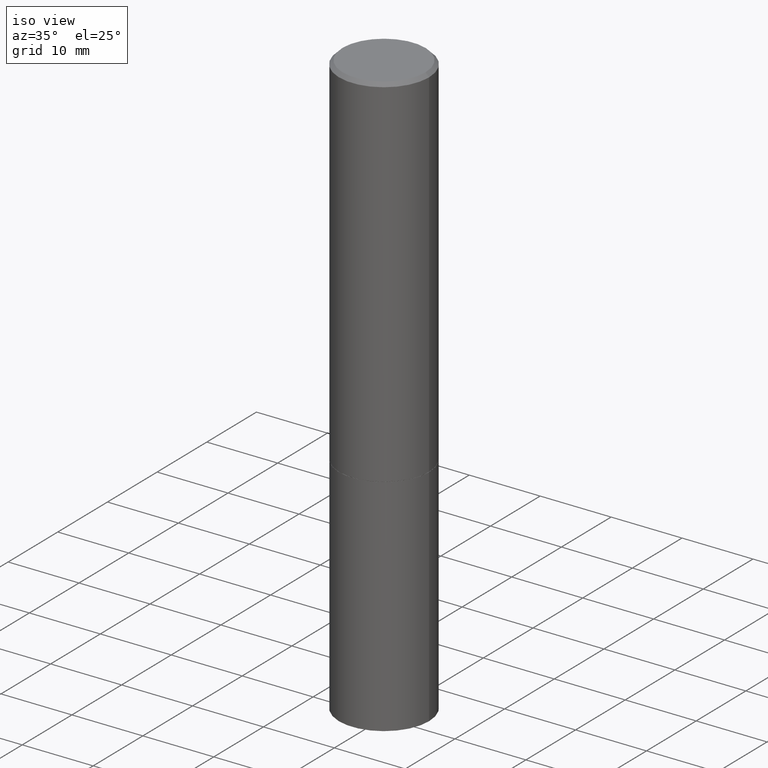
[diagram: clean part render]
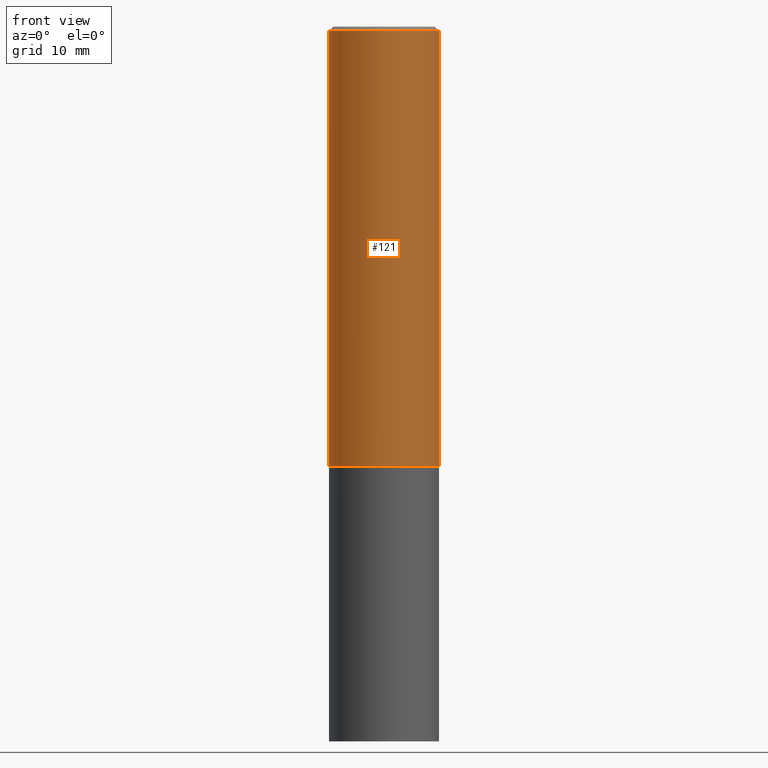
[diagram: tour spotlight — one face highlighted and labeled with its STEP entity id]
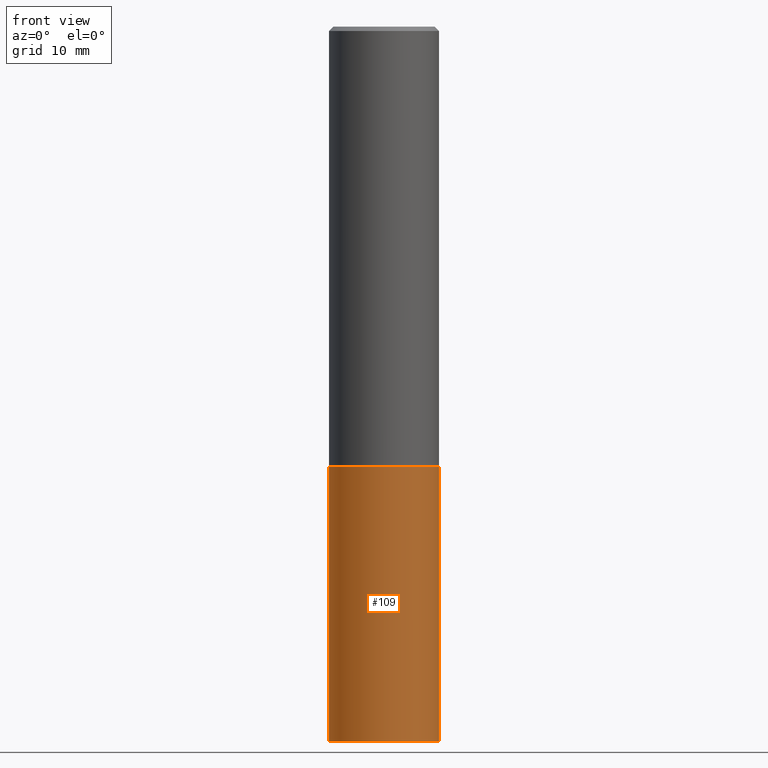
[diagram: tour spotlight — one face highlighted and labeled with its STEP entity id]
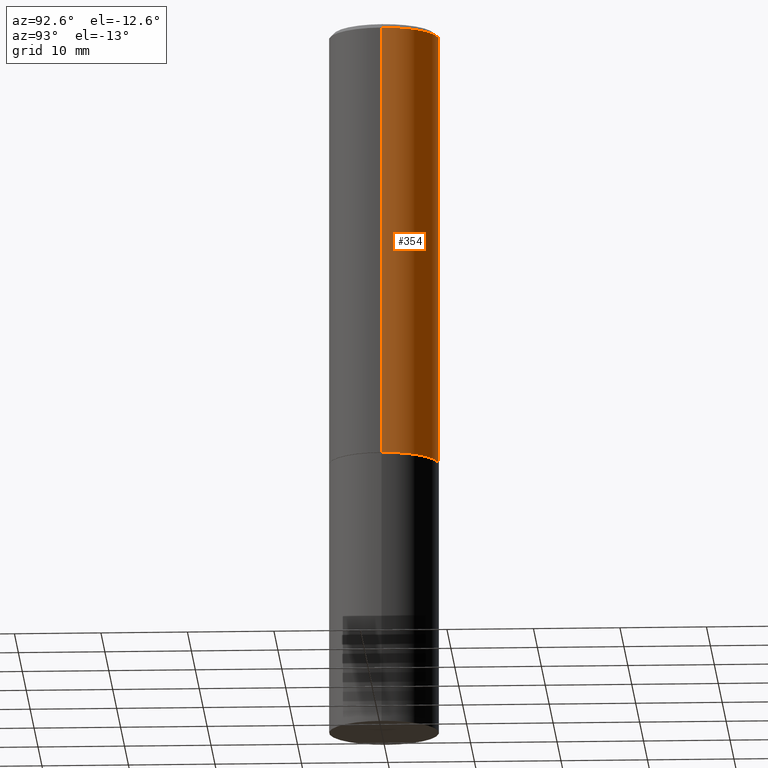
[diagram: tour spotlight — one face highlighted and labeled with its STEP entity id]
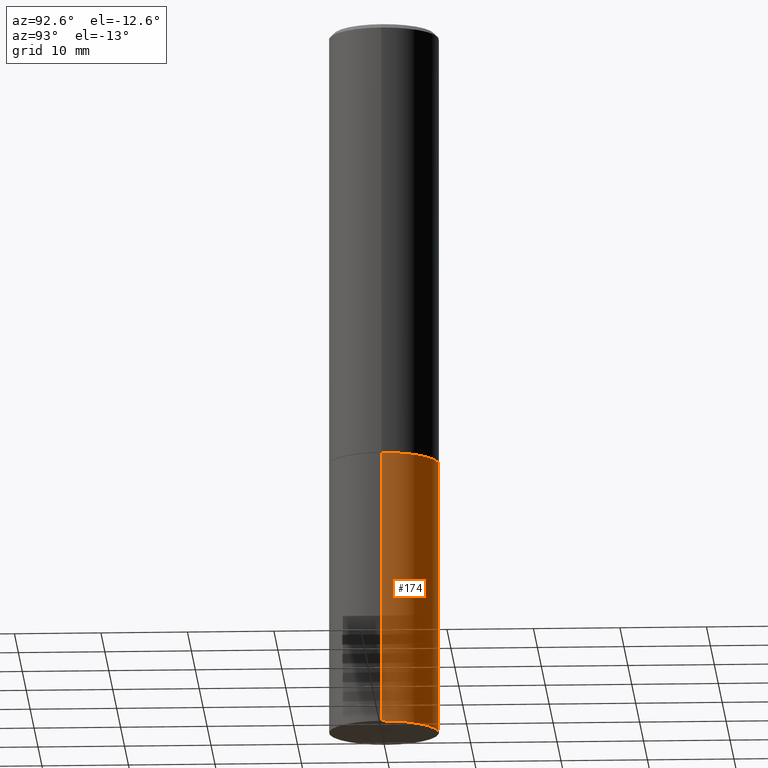
[diagram: tour spotlight — one face highlighted and labeled with its STEP entity id]
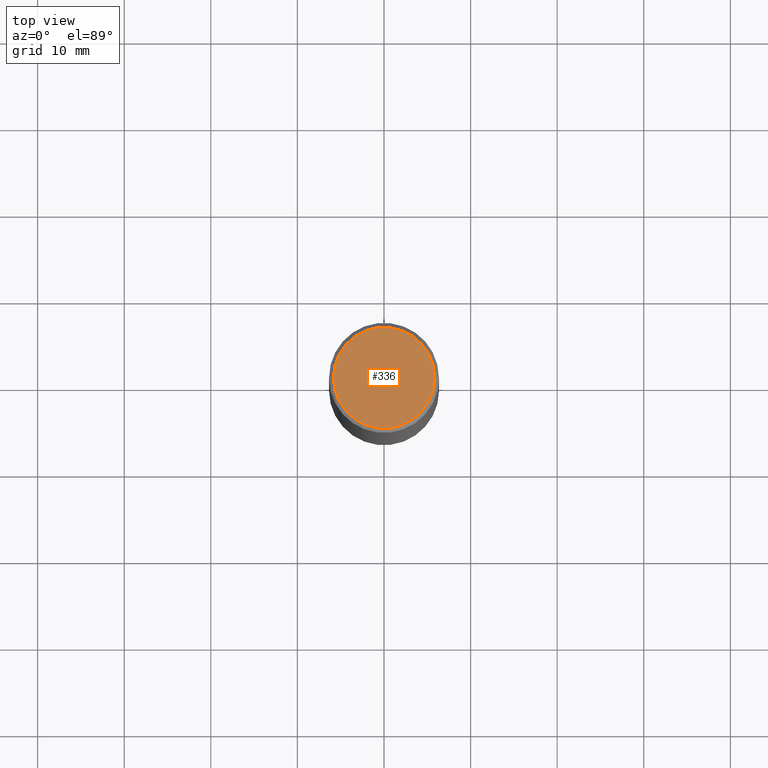
[diagram: tour spotlight — one face highlighted and labeled with its STEP entity id]
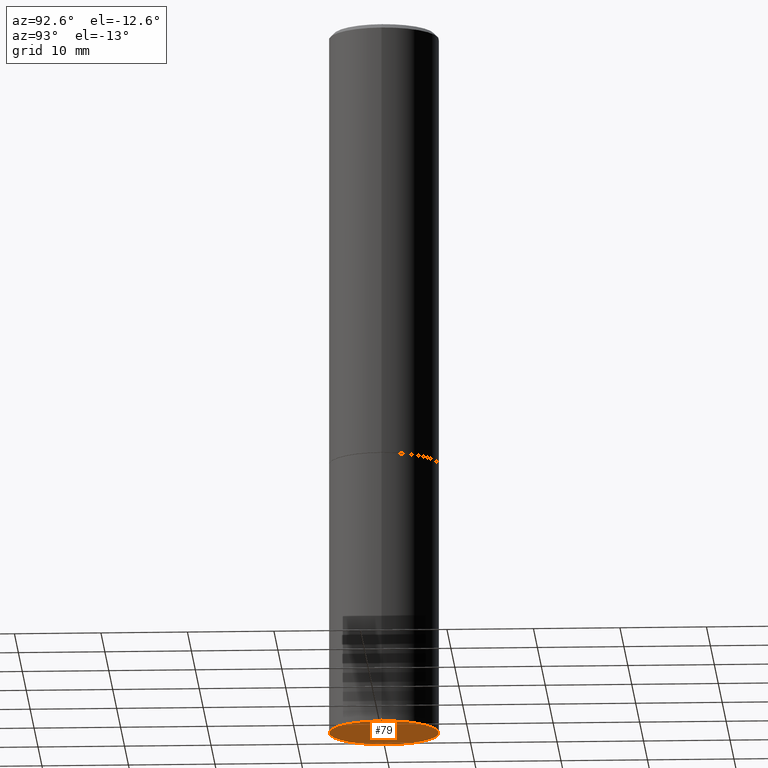
[diagram: tour spotlight — one face highlighted and labeled with its STEP entity id]
A machine part: a face-by-face anatomy tour. The part has 12 B-rep faces; the first image is the clean iso view, then the 6 largest visible faces are spotlighted one at a time (largest first), each with its STEP entity span.

Face 1 — front view, entity #121. In plain terms, the highlighted cylindrical surface (partial cylindrical patch) has radius 6.35 mm, axis along (-0, 0, 1).
Definition (entity closure, byte-faithful):
#11 = DIRECTION ( 'NONE',  ( 1.000000000000000000, -6.982962677686267499E-15, 0.000000000000000000 ) ) ;
#26 = CARTESIAN_POINT ( 'NONE',  ( 0.2500000000000000000, -8.725211865769014047E-15, -1.998999999999999888 ) ) ;
#31 = CARTESIAN_POINT ( 'NONE',  ( 0.2499999999999998612, -1.745740669421565692E-15, 1.219044193948983248E-29 ) ) ;
#33 = AXIS2_PLACEMENT_3D ( 'NONE', #222, #340, #172 ) ;
#77 = DIRECTION ( 'NONE',  ( -2.445468806185136597E-29, 3.491481338843145583E-15, 1.000000000000000000 ) ) ;
#85 = LINE ( 'NONE', #246, #91 ) ;
#91 = VECTOR ( 'NONE', #301, 39.37007874015748143 ) ;
#92 = DIRECTION ( 'NONE',  ( -2.445468806185136877E-29, 3.491481338843145188E-15, 1.000000000000000000 ) ) ;
#98 = CARTESIAN_POINT ( 'NONE',  ( 4.890937612370288047E-31, -6.982962677686311331E-17, -0.02000000000000005940 ) ) ;
#105 = CARTESIAN_POINT ( 'NONE',  ( -0.2499999999999999722, -1.748293572161904475E-15, -1.998999999999999888 ) ) ;
#107 = CARTESIAN_POINT ( 'NONE',  ( 4.888492143564087591E-29, -6.979471196347447369E-15, -1.998999999999999888 ) ) ;
#111 = CIRCLE ( 'NONE', #179, 0.2500000000000000000 ) ;
#121 = ADVANCED_FACE ( 'NONE', ( #148 ), #261, .T. ) ;
#123 = ORIENTED_EDGE ( 'NONE', *, *, #187, .T. ) ;
#129 = EDGE_CURVE ( 'NONE', #193, #334, #325, .T. ) ;
#146 = DIRECTION ( 'NONE',  ( -2.445468806185136597E-29, 3.491481338843145583E-15, 1.000000000000000000 ) ) ;
#148 = FACE_OUTER_BOUND ( 'NONE', #201, .T. ) ;
#162 = AXIS2_PLACEMENT_3D ( 'NONE', #98, #146, #11 ) ;
#172 = DIRECTION ( 'NONE',  ( 1.000000000000000000, -6.982962677686266711E-15, 4.876176775795935793E-29 ) ) ;
#175 = DIRECTION ( 'NONE',  ( 1.000000000000000000, -6.982962677686266711E-15, 0.000000000000000000 ) ) ;
#179 = AXIS2_PLACEMENT_3D ( 'NONE', #107, #77, #175 ) ;
#187 = EDGE_CURVE ( 'NONE', #242, #366, #111, .T. ) ;
#193 = VERTEX_POINT ( 'NONE', #264 ) ;
#201 = EDGE_LOOP ( 'NONE', ( #262, #123, #255, #248 ) ) ;
#205 = CARTESIAN_POINT ( 'NONE',  ( 0.2499999999999997502, -1.784954126219744217E-15, -0.02000000000000005940 ) ) ;
#209 = EDGE_CURVE ( 'NONE', #366, #334, #349, .T. ) ;
#222 = CARTESIAN_POINT ( 'NONE',  ( 0.000000000000000000, 0.000000000000000000, 0.000000000000000000 ) ) ;
#242 = VERTEX_POINT ( 'NONE', #105 ) ;
#246 = CARTESIAN_POINT ( 'NONE',  ( -0.2499999999999998612, 1.776356839400249479E-15, -1.229733772563725745E-29 ) ) ;
#248 = ORIENTED_EDGE ( 'NONE', *, *, #129, .F. ) ;
#255 = ORIENTED_EDGE ( 'NONE', *, *, #209, .T. ) ;
#261 = CYLINDRICAL_SURFACE ( 'NONE', #33, 0.2499999999999998612 ) ;
#262 = ORIENTED_EDGE ( 'NONE', *, *, #296, .F. ) ;
#264 = CARTESIAN_POINT ( 'NONE',  ( -0.2499999999999997502, 1.675911042644701999E-15, -0.02000000000000005940 ) ) ;
#296 = EDGE_CURVE ( 'NONE', #242, #193, #85, .T. ) ;
#301 = DIRECTION ( 'NONE',  ( -2.445468806185136877E-29, 3.491481338843145188E-15, 1.000000000000000000 ) ) ;
#322 = VECTOR ( 'NONE', #92, 39.37007874015748143 ) ;
#325 = CIRCLE ( 'NONE', #162, 0.2499999999999997502 ) ;
#334 = VERTEX_POINT ( 'NONE', #205 ) ;
#340 = DIRECTION ( 'NONE',  ( -2.445468806185136597E-29, 3.491481338843145583E-15, 1.000000000000000000 ) ) ;
#349 = LINE ( 'NONE', #31, #322 ) ;
#366 = VERTEX_POINT ( 'NONE', #26 ) ;

Face 2 — front view, entity #109. In plain terms, the highlighted cylindrical surface (partial cylindrical patch) has radius 6.35 mm, axis along (-0, 0, 1).
Definition (entity closure, byte-faithful):
#2 = VECTOR ( 'NONE', #176, 39.37007874015748143 ) ;
#6 = DIRECTION ( 'NONE',  ( -2.445468806185136597E-29, 3.491481338843145583E-15, 1.000000000000000000 ) ) ;
#7 = VERTEX_POINT ( 'NONE', #288 ) ;
#16 = LINE ( 'NONE', #231, #2 ) ;
#20 = VERTEX_POINT ( 'NONE', #220 ) ;
#44 = FACE_OUTER_BOUND ( 'NONE', #348, .T. ) ;
#48 = CIRCLE ( 'NONE', #138, 0.2500000000000000000 ) ;
#64 = ORIENTED_EDGE ( 'NONE', *, *, #199, .T. ) ;
#65 = VERTEX_POINT ( 'NONE', #170 ) ;
#68 = VECTOR ( 'NONE', #269, 39.37007874015748143 ) ;
#72 = CYLINDRICAL_SURFACE ( 'NONE', #194, 0.2500000000000000000 ) ;
#86 = AXIS2_PLACEMENT_3D ( 'NONE', #353, #110, #302 ) ;
#93 = EDGE_CURVE ( 'NONE', #20, #188, #48, .T. ) ;
#101 = DIRECTION ( 'NONE',  ( -2.445468806185136597E-29, 3.491481338843145583E-15, 1.000000000000000000 ) ) ;
#109 = ADVANCED_FACE ( 'NONE', ( #44 ), #72, .T. ) ;
#110 = DIRECTION ( 'NONE',  ( -2.445468806185136597E-29, 3.491481338843145583E-15, 1.000000000000000000 ) ) ;
#118 = DIRECTION ( 'NONE',  ( 1.000000000000000000, -6.982962677686266711E-15, 4.876176775795935793E-29 ) ) ;
#138 = AXIS2_PLACEMENT_3D ( 'NONE', #257, #101, #282 ) ;
#141 = CARTESIAN_POINT ( 'NONE',  ( 0.000000000000000000, 0.000000000000000000, 0.000000000000000000 ) ) ;
#164 = ORIENTED_EDGE ( 'NONE', *, *, #93, .T. ) ;
#170 = CARTESIAN_POINT ( 'NONE',  ( -0.2500000000000000000, -7.388781675063007725E-15, -2.000000000000000000 ) ) ;
#176 = DIRECTION ( 'NONE',  ( -2.445468806185136877E-29, 3.491481338843145188E-15, 1.000000000000000000 ) ) ;
#183 = CARTESIAN_POINT ( 'NONE',  ( -0.2500000000000000000, 1.776356839400250465E-15, -1.229733772563726445E-29 ) ) ;
#188 = VERTEX_POINT ( 'NONE', #294 ) ;
#194 = AXIS2_PLACEMENT_3D ( 'NONE', #141, #6, #118 ) ;
#199 = EDGE_CURVE ( 'NONE', #188, #7, #16, .T. ) ;
#207 = ORIENTED_EDGE ( 'NONE', *, *, #279, .F. ) ;
#220 = CARTESIAN_POINT ( 'NONE',  ( -0.2500000000000000000, -7.388781675063007725E-15, -3.250000000000000000 ) ) ;
#231 = CARTESIAN_POINT ( 'NONE',  ( 0.2500000000000000000, -1.745740669421566678E-15, 1.219044193948983948E-29 ) ) ;
#257 = CARTESIAN_POINT ( 'NONE',  ( 7.947773620101693940E-29, -1.134731435124022443E-14, -3.250000000000000000 ) ) ;
#269 = DIRECTION ( 'NONE',  ( -2.445468806185136877E-29, 3.491481338843145188E-15, 1.000000000000000000 ) ) ;
#279 = EDGE_CURVE ( 'NONE', #20, #65, #327, .T. ) ;
#282 = DIRECTION ( 'NONE',  ( 1.000000000000000000, -6.982962677686262766E-15, 0.000000000000000000 ) ) ;
#288 = CARTESIAN_POINT ( 'NONE',  ( 0.2500000000000000000, -8.728703347107857054E-15, -2.000000000000000000 ) ) ;
#294 = CARTESIAN_POINT ( 'NONE',  ( 0.2500000000000000000, -1.309305502066178953E-14, -3.250000000000000000 ) ) ;
#302 = DIRECTION ( 'NONE',  ( 1.000000000000000000, -6.982962677686266711E-15, 0.000000000000000000 ) ) ;
#327 = LINE ( 'NONE', #183, #68 ) ;
#333 = EDGE_CURVE ( 'NONE', #65, #7, #350, .T. ) ;
#348 = EDGE_LOOP ( 'NONE', ( #207, #164, #64, #363 ) ) ;
#350 = CIRCLE ( 'NONE', #86, 0.2500000000000000000 ) ;
#353 = CARTESIAN_POINT ( 'NONE',  ( 4.890937612370273194E-29, -6.982962677686291165E-15, -2.000000000000000000 ) ) ;
#363 = ORIENTED_EDGE ( 'NONE', *, *, #333, .F. ) ;

Face 3 — auxiliary view, entity #354. In plain terms, the highlighted cylindrical surface (partial cylindrical patch) has radius 6.35 mm, axis along (-0, 0, 1).
Definition (entity closure, byte-faithful):
#18 = CARTESIAN_POINT ( 'NONE',  ( 4.890937612370288047E-31, -6.982962677686311331E-17, -0.02000000000000005940 ) ) ;
#26 = CARTESIAN_POINT ( 'NONE',  ( 0.2500000000000000000, -8.725211865769014047E-15, -1.998999999999999888 ) ) ;
#31 = CARTESIAN_POINT ( 'NONE',  ( 0.2499999999999998612, -1.745740669421565692E-15, 1.219044193948983248E-29 ) ) ;
#84 = ORIENTED_EDGE ( 'NONE', *, *, #259, .F. ) ;
#85 = LINE ( 'NONE', #246, #91 ) ;
#91 = VECTOR ( 'NONE', #301, 39.37007874015748143 ) ;
#92 = DIRECTION ( 'NONE',  ( -2.445468806185136877E-29, 3.491481338843145188E-15, 1.000000000000000000 ) ) ;
#105 = CARTESIAN_POINT ( 'NONE',  ( -0.2499999999999999722, -1.748293572161904475E-15, -1.998999999999999888 ) ) ;
#112 = CYLINDRICAL_SURFACE ( 'NONE', #283, 0.2499999999999998612 ) ;
#113 = CARTESIAN_POINT ( 'NONE',  ( 0.000000000000000000, 0.000000000000000000, 0.000000000000000000 ) ) ;
#122 = DIRECTION ( 'NONE',  ( -2.445468806185136597E-29, 3.491481338843145583E-15, 1.000000000000000000 ) ) ;
#137 = EDGE_CURVE ( 'NONE', #366, #242, #243, .T. ) ;
#159 = DIRECTION ( 'NONE',  ( -2.445468806185136597E-29, 3.491481338843145583E-15, 1.000000000000000000 ) ) ;
#169 = DIRECTION ( 'NONE',  ( -2.445468806185136597E-29, 3.491481338843145583E-15, 1.000000000000000000 ) ) ;
#193 = VERTEX_POINT ( 'NONE', #264 ) ;
#205 = CARTESIAN_POINT ( 'NONE',  ( 0.2499999999999997502, -1.784954126219744217E-15, -0.02000000000000005940 ) ) ;
#209 = EDGE_CURVE ( 'NONE', #366, #334, #349, .T. ) ;
#212 = DIRECTION ( 'NONE',  ( 1.000000000000000000, -6.982962677686266711E-15, 4.876176775795935793E-29 ) ) ;
#218 = AXIS2_PLACEMENT_3D ( 'NONE', #347, #122, #229 ) ;
#227 = ORIENTED_EDGE ( 'NONE', *, *, #296, .T. ) ;
#228 = EDGE_LOOP ( 'NONE', ( #338, #227, #84, #230 ) ) ;
#229 = DIRECTION ( 'NONE',  ( 1.000000000000000000, -6.982962677686266711E-15, 0.000000000000000000 ) ) ;
#230 = ORIENTED_EDGE ( 'NONE', *, *, #209, .F. ) ;
#242 = VERTEX_POINT ( 'NONE', #105 ) ;
#243 = CIRCLE ( 'NONE', #218, 0.2500000000000000000 ) ;
#246 = CARTESIAN_POINT ( 'NONE',  ( -0.2499999999999998612, 1.776356839400249479E-15, -1.229733772563725745E-29 ) ) ;
#259 = EDGE_CURVE ( 'NONE', #334, #193, #313, .T. ) ;
#264 = CARTESIAN_POINT ( 'NONE',  ( -0.2499999999999997502, 1.675911042644701999E-15, -0.02000000000000005940 ) ) ;
#267 = AXIS2_PLACEMENT_3D ( 'NONE', #18, #169, #342 ) ;
#271 = FACE_OUTER_BOUND ( 'NONE', #228, .T. ) ;
#283 = AXIS2_PLACEMENT_3D ( 'NONE', #113, #159, #212 ) ;
#296 = EDGE_CURVE ( 'NONE', #242, #193, #85, .T. ) ;
#301 = DIRECTION ( 'NONE',  ( -2.445468806185136877E-29, 3.491481338843145188E-15, 1.000000000000000000 ) ) ;
#313 = CIRCLE ( 'NONE', #267, 0.2499999999999997502 ) ;
#322 = VECTOR ( 'NONE', #92, 39.37007874015748143 ) ;
#334 = VERTEX_POINT ( 'NONE', #205 ) ;
#338 = ORIENTED_EDGE ( 'NONE', *, *, #137, .T. ) ;
#342 = DIRECTION ( 'NONE',  ( 1.000000000000000000, -6.982962677686267499E-15, 0.000000000000000000 ) ) ;
#347 = CARTESIAN_POINT ( 'NONE',  ( 4.888492143564087591E-29, -6.979471196347447369E-15, -1.998999999999999888 ) ) ;
#349 = LINE ( 'NONE', #31, #322 ) ;
#354 = ADVANCED_FACE ( 'NONE', ( #271 ), #112, .T. ) ;
#366 = VERTEX_POINT ( 'NONE', #26 ) ;

Face 4 — auxiliary view, entity #174. In plain terms, the highlighted cylindrical surface (partial cylindrical patch) has radius 6.35 mm, axis along (-0, 0, 1).
Definition (entity closure, byte-faithful):
#2 = VECTOR ( 'NONE', #176, 39.37007874015748143 ) ;
#3 = DIRECTION ( 'NONE',  ( -2.445468806185136597E-29, 3.491481338843145583E-15, 1.000000000000000000 ) ) ;
#7 = VERTEX_POINT ( 'NONE', #288 ) ;
#12 = DIRECTION ( 'NONE',  ( -2.445468806185136597E-29, 3.491481338843145583E-15, 1.000000000000000000 ) ) ;
#15 = ORIENTED_EDGE ( 'NONE', *, *, #279, .T. ) ;
#16 = LINE ( 'NONE', #231, #2 ) ;
#20 = VERTEX_POINT ( 'NONE', #220 ) ;
#49 = EDGE_CURVE ( 'NONE', #188, #20, #61, .T. ) ;
#61 = CIRCLE ( 'NONE', #240, 0.2500000000000000000 ) ;
#63 = CIRCLE ( 'NONE', #76, 0.2500000000000000000 ) ;
#65 = VERTEX_POINT ( 'NONE', #170 ) ;
#68 = VECTOR ( 'NONE', #269, 39.37007874015748143 ) ;
#75 = DIRECTION ( 'NONE',  ( 1.000000000000000000, -6.982962677686262766E-15, 0.000000000000000000 ) ) ;
#76 = AXIS2_PLACEMENT_3D ( 'NONE', #88, #12, #295 ) ;
#88 = CARTESIAN_POINT ( 'NONE',  ( 4.890937612370273194E-29, -6.982962677686291165E-15, -2.000000000000000000 ) ) ;
#99 = DIRECTION ( 'NONE',  ( 1.000000000000000000, -6.982962677686266711E-15, 4.876176775795935793E-29 ) ) ;
#132 = FACE_OUTER_BOUND ( 'NONE', #330, .T. ) ;
#135 = AXIS2_PLACEMENT_3D ( 'NONE', #211, #272, #99 ) ;
#143 = CARTESIAN_POINT ( 'NONE',  ( 7.947773620101693940E-29, -1.134731435124022443E-14, -3.250000000000000000 ) ) ;
#149 = ORIENTED_EDGE ( 'NONE', *, *, #199, .F. ) ;
#170 = CARTESIAN_POINT ( 'NONE',  ( -0.2500000000000000000, -7.388781675063007725E-15, -2.000000000000000000 ) ) ;
#174 = ADVANCED_FACE ( 'NONE', ( #132 ), #245, .T. ) ;
#176 = DIRECTION ( 'NONE',  ( -2.445468806185136877E-29, 3.491481338843145188E-15, 1.000000000000000000 ) ) ;
#181 = ORIENTED_EDGE ( 'NONE', *, *, #49, .T. ) ;
#183 = CARTESIAN_POINT ( 'NONE',  ( -0.2500000000000000000, 1.776356839400250465E-15, -1.229733772563726445E-29 ) ) ;
#188 = VERTEX_POINT ( 'NONE', #294 ) ;
#199 = EDGE_CURVE ( 'NONE', #188, #7, #16, .T. ) ;
#211 = CARTESIAN_POINT ( 'NONE',  ( 0.000000000000000000, 0.000000000000000000, 0.000000000000000000 ) ) ;
#217 = ORIENTED_EDGE ( 'NONE', *, *, #307, .F. ) ;
#220 = CARTESIAN_POINT ( 'NONE',  ( -0.2500000000000000000, -7.388781675063007725E-15, -3.250000000000000000 ) ) ;
#231 = CARTESIAN_POINT ( 'NONE',  ( 0.2500000000000000000, -1.745740669421566678E-15, 1.219044193948983948E-29 ) ) ;
#240 = AXIS2_PLACEMENT_3D ( 'NONE', #143, #3, #75 ) ;
#245 = CYLINDRICAL_SURFACE ( 'NONE', #135, 0.2500000000000000000 ) ;
#269 = DIRECTION ( 'NONE',  ( -2.445468806185136877E-29, 3.491481338843145188E-15, 1.000000000000000000 ) ) ;
#272 = DIRECTION ( 'NONE',  ( -2.445468806185136597E-29, 3.491481338843145583E-15, 1.000000000000000000 ) ) ;
#279 = EDGE_CURVE ( 'NONE', #20, #65, #327, .T. ) ;
#288 = CARTESIAN_POINT ( 'NONE',  ( 0.2500000000000000000, -8.728703347107857054E-15, -2.000000000000000000 ) ) ;
#294 = CARTESIAN_POINT ( 'NONE',  ( 0.2500000000000000000, -1.309305502066178953E-14, -3.250000000000000000 ) ) ;
#295 = DIRECTION ( 'NONE',  ( 1.000000000000000000, -6.982962677686266711E-15, 0.000000000000000000 ) ) ;
#307 = EDGE_CURVE ( 'NONE', #7, #65, #63, .T. ) ;
#327 = LINE ( 'NONE', #183, #68 ) ;
#330 = EDGE_LOOP ( 'NONE', ( #181, #15, #217, #149 ) ) ;

Face 5 — top view, entity #336. In plain terms, the highlighted planar face has unit normal (0, -0, -1).
Definition (entity closure, byte-faithful):
#30 = PLANE ( 'NONE',  #304 ) ;
#34 = ORIENTED_EDGE ( 'NONE', *, *, #357, .T. ) ;
#50 = DIRECTION ( 'NONE',  ( 1.000000000000000000, -6.982962677686266711E-15, 4.876225828469314487E-29 ) ) ;
#55 = DIRECTION ( 'NONE',  ( 2.438088387897960049E-29, -3.491481338843145188E-15, -1.000000000000000000 ) ) ;
#60 = CARTESIAN_POINT ( 'NONE',  ( -0.2299999999999997324, 1.640996229256270744E-15, 4.268512490089056766E-18 ) ) ;
#80 = CIRCLE ( 'NONE', #144, 0.2299999999999997324 ) ;
#96 = CIRCLE ( 'NONE', #332, 0.2299999999999997324 ) ;
#100 = CARTESIAN_POINT ( 'NONE',  ( 0.2299999999999997324, -1.681434332853597236E-15, 4.268512490111905999E-18 ) ) ;
#116 = ORIENTED_EDGE ( 'NONE', *, *, #142, .T. ) ;
#134 = DIRECTION ( 'NONE',  ( -1.000000000000000000, 6.982962677686265922E-15, -4.876176775795935793E-29 ) ) ;
#136 = EDGE_LOOP ( 'NONE', ( #34, #116 ) ) ;
#142 = EDGE_CURVE ( 'NONE', #263, #154, #96, .T. ) ;
#144 = AXIS2_PLACEMENT_3D ( 'NONE', #247, #359, #208 ) ;
#154 = VERTEX_POINT ( 'NONE', #60 ) ;
#157 = FACE_OUTER_BOUND ( 'NONE', #136, .T. ) ;
#173 = DIRECTION ( 'NONE',  ( -2.445468806185136597E-29, 3.491481338843145583E-15, 1.000000000000000000 ) ) ;
#208 = DIRECTION ( 'NONE',  ( 1.000000000000000000, -6.982962677686266711E-15, 4.876225828469314487E-29 ) ) ;
#247 = CARTESIAN_POINT ( 'NONE',  ( -1.043851414335219820E-46, 1.490343170380447200E-32, 4.268512490100411279E-18 ) ) ;
#263 = VERTEX_POINT ( 'NONE', #100 ) ;
#293 = CARTESIAN_POINT ( 'NONE',  ( -1.043851414335219820E-46, 1.490343170380447200E-32, 4.268512490100411279E-18 ) ) ;
#304 = AXIS2_PLACEMENT_3D ( 'NONE', #361, #55, #134 ) ;
#332 = AXIS2_PLACEMENT_3D ( 'NONE', #293, #173, #50 ) ;
#336 = ADVANCED_FACE ( 'NONE', ( #157 ), #30, .F. ) ;
#357 = EDGE_CURVE ( 'NONE', #154, #263, #80, .T. ) ;
#359 = DIRECTION ( 'NONE',  ( -2.445468806185136597E-29, 3.491481338843145583E-15, 1.000000000000000000 ) ) ;
#361 = CARTESIAN_POINT ( 'NONE',  ( 1.606081415867839292E-15, 0.2299999999999997324, -8.009064516888723911E-16 ) ) ;

Face 6 — auxiliary view, entity #79. In plain terms, the highlighted planar face has unit normal (0, -0, -1).
Definition (entity closure, byte-faithful):
#3 = DIRECTION ( 'NONE',  ( -2.445468806185136597E-29, 3.491481338843145583E-15, 1.000000000000000000 ) ) ;
#20 = VERTEX_POINT ( 'NONE', #220 ) ;
#40 = AXIS2_PLACEMENT_3D ( 'NONE', #67, #197, #343 ) ;
#48 = CIRCLE ( 'NONE', #138, 0.2500000000000000000 ) ;
#49 = EDGE_CURVE ( 'NONE', #188, #20, #61, .T. ) ;
#61 = CIRCLE ( 'NONE', #240, 0.2500000000000000000 ) ;
#67 = CARTESIAN_POINT ( 'NONE',  ( 1.745740669421645958E-15, 0.2499999999999886480, -3.250000000000001332 ) ) ;
#75 = DIRECTION ( 'NONE',  ( 1.000000000000000000, -6.982962677686262766E-15, 0.000000000000000000 ) ) ;
#79 = ADVANCED_FACE ( 'NONE', ( #258 ), #287, .T. ) ;
#93 = EDGE_CURVE ( 'NONE', #20, #188, #48, .T. ) ;
#101 = DIRECTION ( 'NONE',  ( -2.445468806185136597E-29, 3.491481338843145583E-15, 1.000000000000000000 ) ) ;
#117 = ORIENTED_EDGE ( 'NONE', *, *, #93, .F. ) ;
#138 = AXIS2_PLACEMENT_3D ( 'NONE', #257, #101, #282 ) ;
#143 = CARTESIAN_POINT ( 'NONE',  ( 7.947773620101693940E-29, -1.134731435124022443E-14, -3.250000000000000000 ) ) ;
#158 = ORIENTED_EDGE ( 'NONE', *, *, #49, .F. ) ;
#160 = EDGE_LOOP ( 'NONE', ( #158, #117 ) ) ;
#188 = VERTEX_POINT ( 'NONE', #294 ) ;
#197 = DIRECTION ( 'NONE',  ( 2.438088387897960049E-29, -3.491481338843145188E-15, -1.000000000000000000 ) ) ;
#220 = CARTESIAN_POINT ( 'NONE',  ( -0.2500000000000000000, -7.388781675063007725E-15, -3.250000000000000000 ) ) ;
#240 = AXIS2_PLACEMENT_3D ( 'NONE', #143, #3, #75 ) ;
#257 = CARTESIAN_POINT ( 'NONE',  ( 7.947773620101693940E-29, -1.134731435124022443E-14, -3.250000000000000000 ) ) ;
#258 = FACE_OUTER_BOUND ( 'NONE', #160, .T. ) ;
#282 = DIRECTION ( 'NONE',  ( 1.000000000000000000, -6.982962677686262766E-15, 0.000000000000000000 ) ) ;
#287 = PLANE ( 'NONE',  #40 ) ;
#294 = CARTESIAN_POINT ( 'NONE',  ( 0.2500000000000000000, -1.309305502066178953E-14, -3.250000000000000000 ) ) ;
#343 = DIRECTION ( 'NONE',  ( -1.000000000000000000, 6.982962677686265922E-15, -4.876176775795935793E-29 ) ) ;